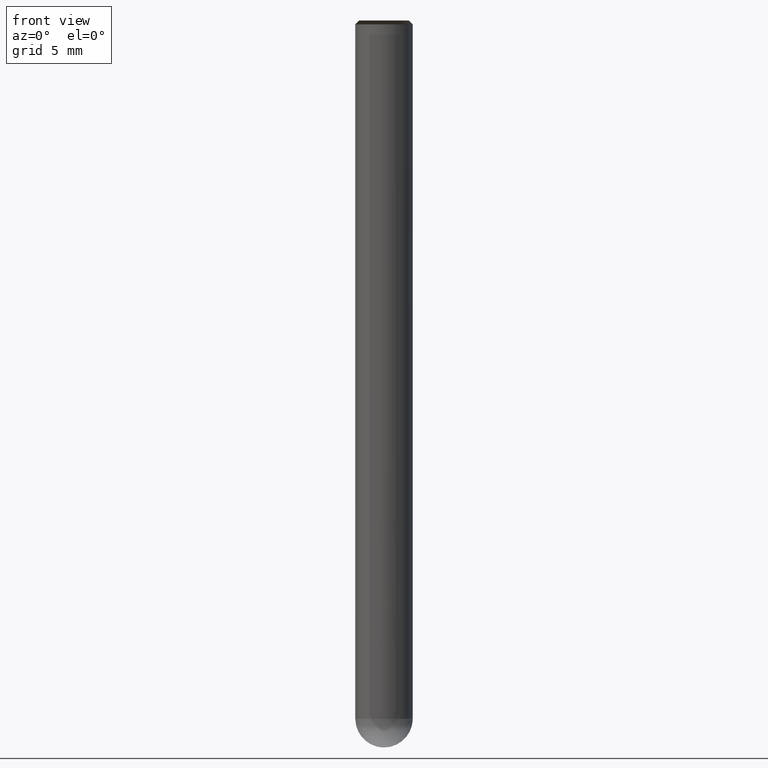
[diagram: clean part render]
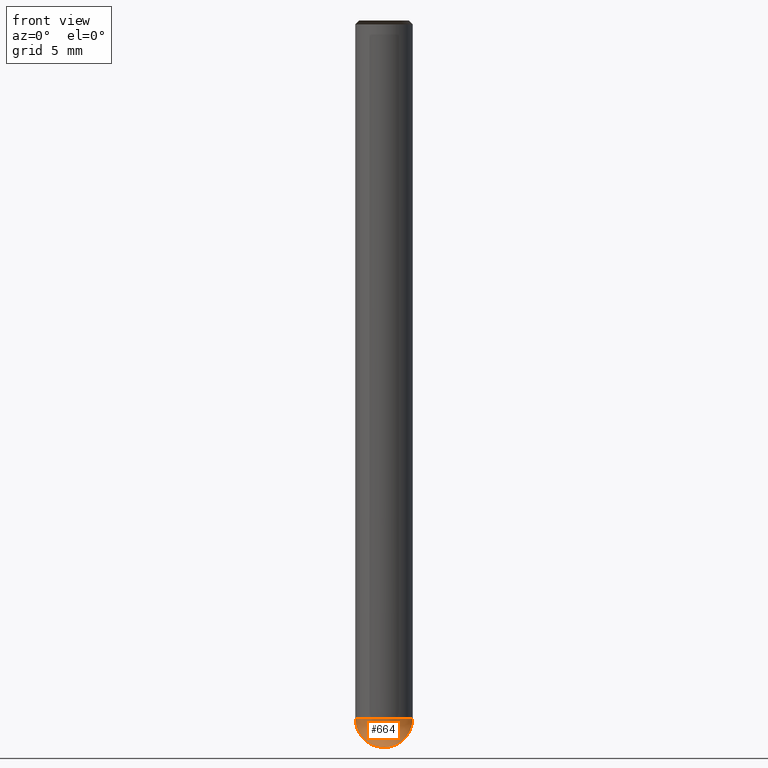
[diagram: same view with one face highlighted and labeled with its STEP entity id]
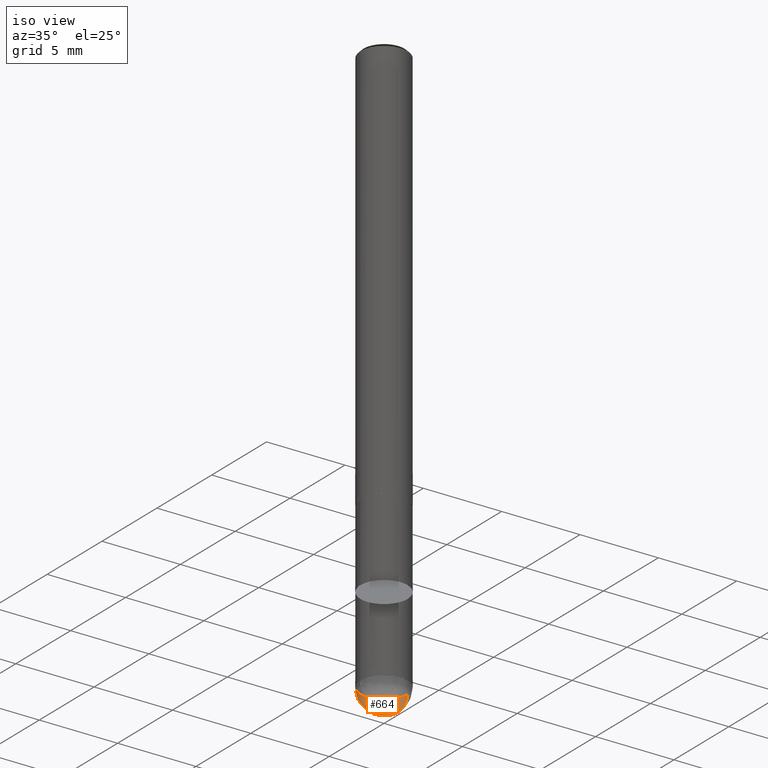
[diagram: same view with one face highlighted and labeled with its STEP entity id]
A machine part, front view. The second image highlights one B-rep face of the part: STEP entity #664.
A second angle (iso view) of the same face is appended — the face is thin or edge-on in the first view.
In plain terms, the highlighted face is a freeform B-spline surface patch.
Its self-contained STEP definition (entity closure, byte-faithful):
#540=CARTESIAN_POINT('',(0.0,0.0,-12.0));
#541=CARTESIAN_POINT('',(1.5,0.0,-12.0));
#545=CARTESIAN_POINT('',(-1.5,0.0,-12.0));
#546=CARTESIAN_POINT('',(1.5,0.0,-10.5));
#550=CARTESIAN_POINT('',(-1.5,0.0,-10.5));
#557=CARTESIAN_POINT('',(-1.5,-1.5,-12.0));
#558=CARTESIAN_POINT('',(0.0,-1.5,-12.0));
#559=CARTESIAN_POINT('',(1.5,-1.5,-12.0));
#560=CARTESIAN_POINT('',(-1.5,-1.5,-10.5));
#561=CARTESIAN_POINT('',(0.0,-1.5,-10.5));
#562=CARTESIAN_POINT('',(1.5,-1.5,-10.5));
#649=(
BOUNDED_SURFACE()
B_SPLINE_SURFACE(2,2,(
(#540,#540,#540,#540,#540),
(#545,#557,#558,#559,#541),
(#550,#560,#561,#562,#546)
), .UNSPECIFIED.,.F.,.F.,.F.)
B_SPLINE_SURFACE_WITH_KNOTS((3,3),(3,2,3),(
0.0,1.0),(
0.0,0.5,1.0), .UNSPECIFIED.)
GEOMETRIC_REPRESENTATION_ITEM()
RATIONAL_B_SPLINE_SURFACE(((1.0,0.707106781187,1.0,0.707106781187,1.0),
(0.707106781187,0.5,0.707106781187,0.5,0.707106781187),
(1.0,0.707106781187,1.0,0.707106781187,1.0)
))
REPRESENTATION_ITEM('')
SURFACE()
);
#650=(
BOUNDED_CURVE()
B_SPLINE_CURVE(2,(#546,#541,#540),.UNSPECIFIED.,.F.,.F.)
B_SPLINE_CURVE_WITH_KNOTS((3,3),
(0.0,1.0),.UNSPECIFIED.)
CURVE()
GEOMETRIC_REPRESENTATION_ITEM()
RATIONAL_B_SPLINE_CURVE((1.0,0.707106781187,1.0))
REPRESENTATION_ITEM('')
);
#651=(
BOUNDED_CURVE()
B_SPLINE_CURVE(2,(#540,#545,#550),.UNSPECIFIED.,.F.,.F.)
B_SPLINE_CURVE_WITH_KNOTS((3,3),
(0.0,1.0),.UNSPECIFIED.)
CURVE()
GEOMETRIC_REPRESENTATION_ITEM()
RATIONAL_B_SPLINE_CURVE((1.0,0.707106781187,1.0))
REPRESENTATION_ITEM('')
);
#652=(
BOUNDED_CURVE()
B_SPLINE_CURVE(2,(#550,#560,#561,#562,#546),.UNSPECIFIED.,.F.,.F.)
B_SPLINE_CURVE_WITH_KNOTS((3,2,3),
(0.0,0.5,1.0),.UNSPECIFIED.)
CURVE()
GEOMETRIC_REPRESENTATION_ITEM()
RATIONAL_B_SPLINE_CURVE((1.0,0.707106781187,1.0,0.707106781187,1.0))
REPRESENTATION_ITEM('')
);
#653=VERTEX_POINT('',#540);
#654=VERTEX_POINT('',#546);
#655=VERTEX_POINT('',#550);
#656=EDGE_CURVE('',#654,#653,#650,.T.);
#657=EDGE_CURVE('',#653,#655,#651,.T.);
#658=EDGE_CURVE('',#655,#654,#652,.T.);
#659=ORIENTED_EDGE('',*,*,#656,.T.);
#660=ORIENTED_EDGE('',*,*,#657,.T.);
#661=ORIENTED_EDGE('',*,*,#658,.T.);
#662=EDGE_LOOP('',(#659,#660,#661));
#663=FACE_OUTER_BOUND('',#662,.T.);
#664=ADVANCED_FACE('',(#663),#649,.T.);